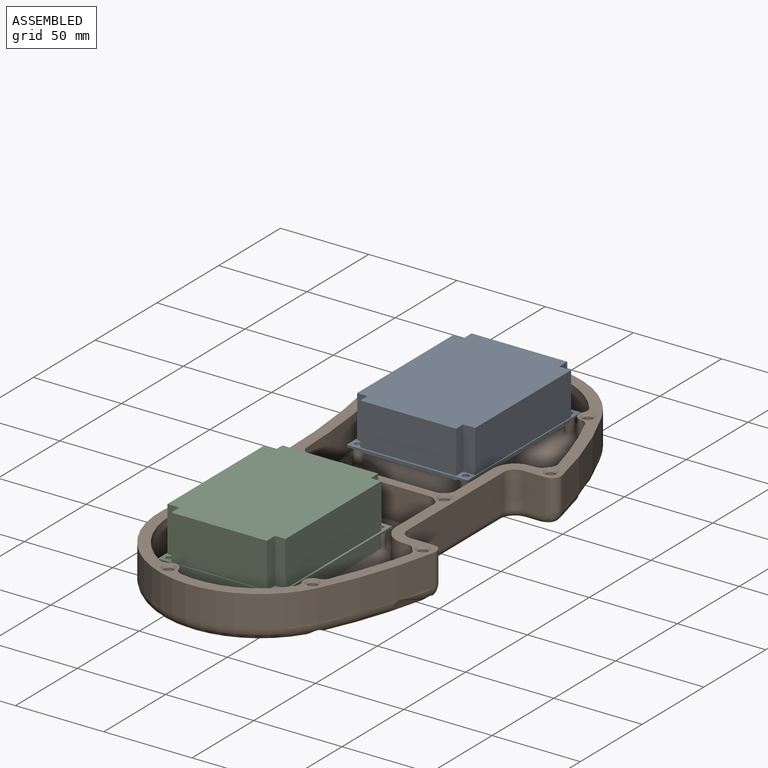
[diagram: assembled view]
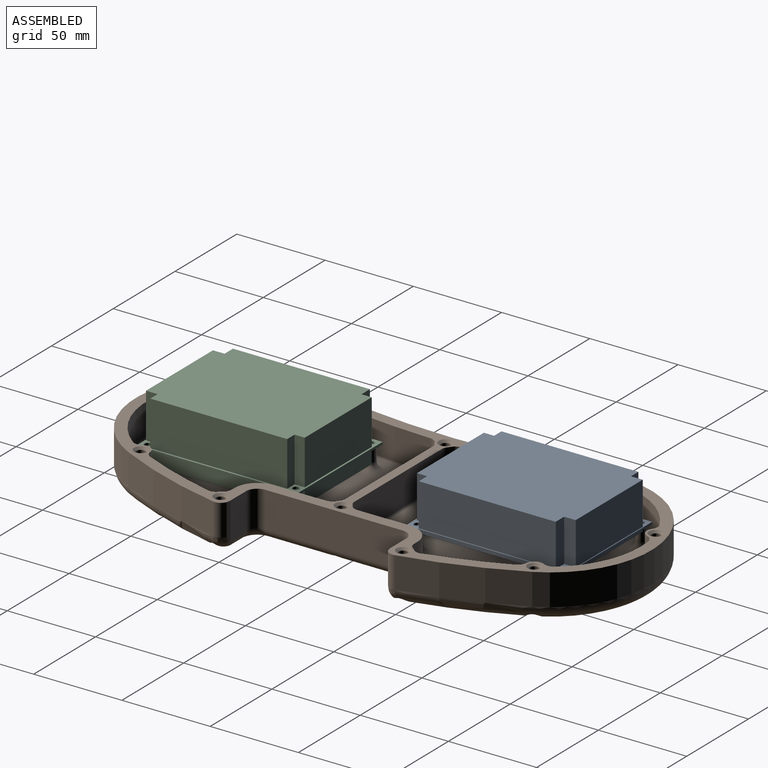
[diagram: assembled view, second angle]
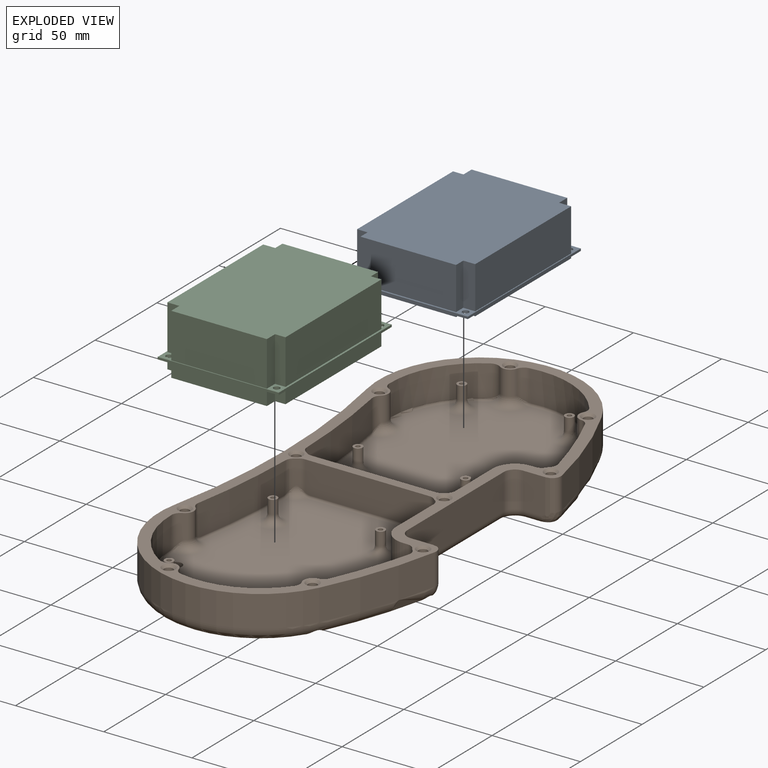
[diagram: exploded view]
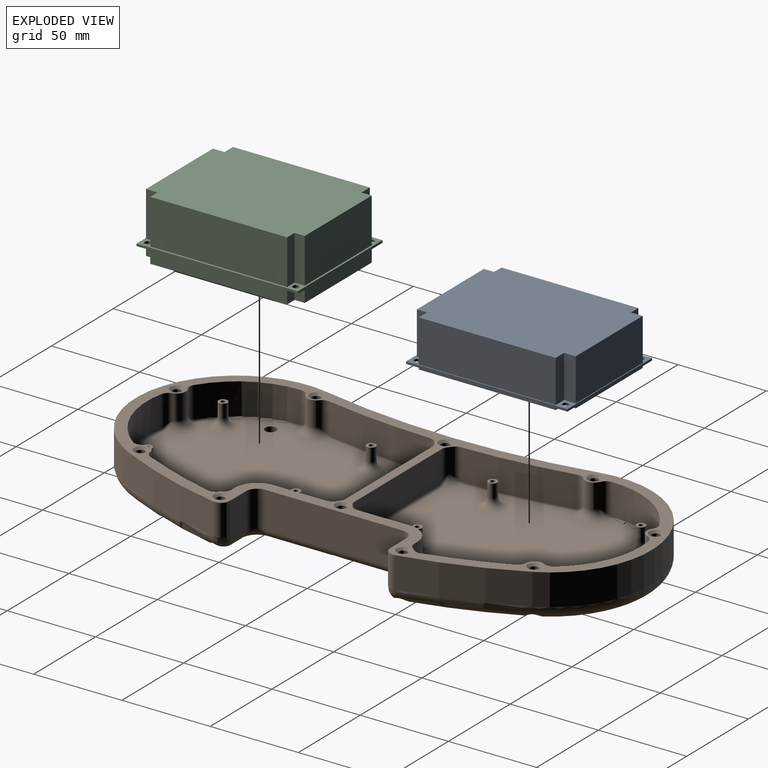
[diagram: exploded view, second angle]
ASSEMBLY  parts=3 mates=4
PART A: 36 faces, bbox 91.4x68.6x26.7 mm
  f0: plane 91.44x68.58mm, normal (0,0,1), area 367.2mm2, adj f2,f3,f4,f5,f6,f7,f8,f9
  f1: plane 91.44x68.58mm, normal (0,0,-1), area 367.2mm2, adj f2,f3,f4,f5,f6,f7,f8,f9
  f2: plane 68.58x1.27mm, normal (-1,0,0), area 87.1mm2, adj f0,f1,f3,f5
  f3: plane 91.44x1.27mm, normal (0,-1,0), area 116.1mm2, adj f0,f1,f2,f4
  f4: plane 68.58x1.27mm, normal (1,0,0), area 87.1mm2, adj f0,f1,f3,f5
  f5: plane 91.44x1.27mm, normal (0,1,0), area 116.1mm2, adj f0,f1,f2,f4
  f6: cylinder r=1.78mm len=3.56mm, axis (0,0,-1), area 14.2mm2, adj f0,f1
  f7: cylinder r=1.78mm len=3.56mm, axis (0,0,-1), area 14.2mm2, adj f0,f1
  f8: cylinder r=1.78mm len=3.56mm, axis (0,0,-1), area 14.2mm2, adj f0,f1
  f9: cylinder r=1.78mm len=3.56mm, axis (0,0,-1), area 14.2mm2, adj f0,f1
  f10: plane 89.98x66.92mm, normal (0,0,-1), area 5864mm2, adj f11,f12,f13,f14,f15,f16,f17,f18
  f11: plane 6.57x1.27mm, normal (0,1,0), area 8.3mm2, adj f1,f10,f12,f22
  f12: plane 54.21x1.27mm, normal (-1,0,0), area 68.8mm2, adj f1,f10,f11,f13
  f13: plane 6.57x1.27mm, normal (0,-1,0), area 8.3mm2, adj f1,f10,f12,f14
  f14: plane 5.93x1.27mm, normal (-1,0,0), area 7.5mm2, adj f1,f10,f13,f15
  f15: plane 77.61x1.27mm, normal (0,-1,0), area 98.6mm2, adj f1,f10,f14,f16
  f16: plane 5.93x1.27mm, normal (1,0,0), area 7.5mm2, adj f1,f10,f15,f17
  f17: plane 5.8x1.27mm, normal (0,-1,0), area 7.4mm2, adj f1,f10,f16,f18
  f18: plane 54.21x1.27mm, normal (1,0,0), area 68.8mm2, adj f1,f10,f17,f19
  f19: plane 5.8x1.27mm, normal (0,1,0), area 7.4mm2, adj f1,f10,f18,f20
  f20: plane 6.78x1.27mm, normal (1,0,0), area 8.6mm2, adj f1,f10,f19,f21
  f21: plane 77.61x1.27mm, normal (0,1,0), area 98.6mm2, adj f1,f10,f20,f22
  f22: plane 6.78x1.27mm, normal (-1,0,0), area 8.6mm2, adj f1,f10,f11,f21
  f23: plane 24.13x6.78mm, normal (-1,0,0), area 163.6mm2, adj f0,f24,f34,f35
  f24: plane 77.61x24.13mm, normal (0,1,0), area 1872.6mm2, adj f0,f23,f25,f35
  f25: plane 24.13x6.78mm, normal (1,0,0), area 163.6mm2, adj f0,f24,f26,f35
  f26: plane 24.13x5.8mm, normal (0,1,0), area 139.9mm2, adj f0,f25,f27,f35
  f27: plane 54.21x24.13mm, normal (1,0,0), area 1308.1mm2, adj f0,f26,f28,f35
  f28: plane 24.13x5.8mm, normal (0,-1,0), area 139.9mm2, adj f0,f27,f29,f35
  f29: plane 24.13x5.93mm, normal (1,0,0), area 143.2mm2, adj f0,f28,f30,f35
  f30: plane 77.61x24.13mm, normal (0,-1,0), area 1872.6mm2, adj f0,f29,f31,f35
  f31: plane 24.13x5.93mm, normal (-1,0,0), area 143.2mm2, adj f0,f30,f32,f35
  f32: plane 24.13x6.57mm, normal (0,-1,0), area 158.6mm2, adj f0,f31,f33,f35
  f33: plane 54.21x24.13mm, normal (-1,0,0), area 1308.1mm2, adj f0,f32,f34,f35
  f34: plane 24.13x6.57mm, normal (0,1,0), area 158.6mm2, adj f0,f23,f33,f35
  f35: plane 89.98x66.92mm, normal (0,0,1), area 5864mm2, adj f23,f24,f25,f26,f27,f28,f29,f30
PART B: 265 faces, bbox 139.1x303.9x27.8 mm
  f0: plane 134.62x112.27mm, normal (0,0,1), area 10563.3mm2, adj f15,f22,f33,f47,f49,f147,f148,f149
  f1: plane 134.62x112.27mm, normal (0,0,1), area 10563.3mm2, adj f13,f21,f38,f48,f50,f151,f152,f153
  f2: cylinder r=2.54mm len=17.78mm, axis (0,0,1), area 283.8mm2, adj f145,f257
  f3: cylinder r=2.54mm len=17.78mm, axis (0,0,1), area 283.8mm2, adj f143,f255
  f4: cylinder r=2.54mm len=17.78mm, axis (0,0,1), area 283.8mm2, adj f141,f264
  f5: cylinder r=2.54mm len=17.78mm, axis (0,0,1), area 283.8mm2, adj f139,f256
  f6: cylinder r=2.54mm len=17.78mm, axis (0,0,1), area 283.8mm2, adj f137,f260
  f7: cylinder r=2.54mm len=17.78mm, axis (0,0,1), area 283.8mm2, adj f135,f262
  f8: cylinder r=2.54mm len=17.78mm, axis (0,0,1), area 283.8mm2, adj f133,f259
  f9: cylinder r=2.54mm len=17.78mm, axis (0,0,1), area 283.8mm2, adj f131,f258
  f10: cylinder r=2.54mm len=17.78mm, axis (0,0,1), area 283.8mm2, adj f129,f261
  f11: cylinder r=2.54mm len=17.78mm, axis (0,0,1), area 283.8mm2, adj f127,f263
  f12: cylinder r=50.8mm len=50.58mm, axis (0,0,1), area 1015.4mm2, adj f13,f36,f187,f189,f232,f234
  f13: torus R=49.53mm, axis (0,0,1), area 109.2mm2, adj f1,f12,f46,f187,f234,f243
  f14: cylinder r=50.8mm len=45.18mm, axis (0,0,1), area 971.3mm2, adj f36,f49,f194,f196,f211,f213
  f15: torus R=49.53mm, axis (0,0,1), area 104.3mm2, adj f0,f32,f44,f192,f222,f249
  f16: torus R=249.56mm, axis (0,0,1), area 541.4mm2, adj f19,f23,f40,f99,f132,f146
  f17: torus R=249.56mm, axis (0,0,1), area 541.4mm2, adj f18,f29,f35,f99,f140,f144
  f18: torus R=49.53mm, axis (0,0,1), area 1327.1mm2, adj f17,f20,f39,f99,f128,f142,f144
  f19: torus R=49.53mm, axis (0,0,1), area 1327.1mm2, adj f16,f20,f41,f99,f132,f134,f138
  f20: torus R=394.97mm, axis (0,0,1), area 1306mm2, adj f18,f19,f42,f99,f134,f136,f142
  f21: cylinder r=3.17mm len=6.35mm, axis (0,0,-1), area 111.5mm2, adj f1,f99
  f22: cylinder r=3.17mm len=6.35mm, axis (0,0,-1), area 111.5mm2, adj f0,f99
  f23: bspline ~9.9x9.37mm, area 58.3mm2, adj f16,f24,f54,f56,f97,f146
  f24: cylinder r=5.08mm len=10.42mm, axis (-1,0,0), area 53mm2, adj f23,f25,f54,f99,f146
  f25: torus R=11.43mm, axis (0,0,1), area 58.2mm2, adj f24,f26,f51,f99
  f26: cylinder r=5.08mm len=78.02mm, axis (0,-1,0), area 399mm2, adj f25,f27,f52,f99,f130
  f27: torus R=11.43mm, axis (0,0,1), area 58.2mm2, adj f26,f28,f53,f99
  f28: cylinder r=5.08mm len=10.42mm, axis (1,0,0), area 53mm2, adj f27,f29,f55,f99,f140
  f29: bspline ~9.9x9.37mm, area 58.3mm2, adj f17,f28,f55,f57,f98,f140
  f30: plane 30.21x17.78mm, normal (-1,0,0), area 537.1mm2, adj f36,f61,f149,f173,f175
  f31: cylinder r=393.7mm len=61.42mm, axis (0,0,1), area 1098.4mm2, adj f36,f50,f201,f203,f204,f206
  f32: plane 4.31x2.43mm, normal (0,0,1), area 2.8mm2, adj f15,f221,f251
  f33: torus R=394.97mm, axis (0,0,1), area 118.1mm2, adj f0,f45,f178,f215
  f34: cylinder r=250.83mm len=43.07mm, axis (0,0,1), area 811.5mm2, adj f36,f38,f155,f157,f236,f238
  f35: cylinder r=257.18mm len=62.84mm, axis (0,0,1), area 1184.8mm2, adj f17,f36,f39,f98
  f36: plane 292.1x130.04mm, normal (0,0,1), area 5027.2mm2, adj f12,f14,f30,f31,f34,f35,f37,f39
  f37: cylinder r=250.83mm len=43.07mm, axis (0,0,1), area 811.5mm2, adj f36,f47,f218,f220,f229,f231
  f38: torus R=249.56mm, axis (0,0,1), area 86.1mm2, adj f1,f34,f157,f236
  f39: cylinder r=57.15mm len=108.35mm, axis (0,0,1), area 2928.9mm2, adj f18,f35,f36,f42
  f40: cylinder r=257.18mm len=62.84mm, axis (0,0,1), area 1184.8mm2, adj f16,f36,f41,f97
  f41: cylinder r=57.15mm len=108.35mm, axis (0,0,1), area 2928.9mm2, adj f19,f36,f40,f42
  f42: cylinder r=387.35mm len=154.94mm, axis (0,0,1), area 2773.5mm2, adj f20,f36,f39,f41
  f43: cylinder r=50.8mm len=43.91mm, axis (0,0,1), area 927.3mm2, adj f36,f48,f183,f185,f208,f210
  f44: cylinder r=50.8mm len=48.14mm, axis (0,0,1), area 971.3mm2, adj f15,f36,f190,f192,f222,f224
  f45: cylinder r=393.7mm len=61.42mm, axis (0,0,1), area 1098.4mm2, adj f33,f36,f176,f178,f215,f217
  f46: plane 4.31x2.43mm, normal (0,0,1), area 2.8mm2, adj f13,f235,f242
  f47: torus R=249.56mm, axis (0,0,1), area 86.1mm2, adj f0,f37,f220,f229
  f48: torus R=49.53mm, axis (0,0,1), area 99.4mm2, adj f1,f43,f185,f208,f245
  f49: torus R=49.53mm, axis (0,0,1), area 104.3mm2, adj f0,f14,f194,f213,f248
  f50: torus R=394.97mm, axis (0,0,1), area 118.1mm2, adj f1,f31,f201,f206
  f51: cylinder r=6.35mm len=20.32mm, axis (0,0,1), area 202.7mm2, adj f25,f36,f52,f54
  f52: plane 78.02x20.32mm, normal (1,0,0), area 1585.4mm2, adj f26,f36,f51,f53
  f53: cylinder r=6.35mm len=20.32mm, axis (0,0,1), area 202.7mm2, adj f27,f36,f52,f55
  f54: plane 20.32x12.7mm, normal (0,-1,0), area 257.2mm2, adj f23,f24,f36,f51,f56
  f55: plane 20.32x12.7mm, normal (0,1,0), area 257.2mm2, adj f28,f29,f36,f53,f57
  f56: plane 22.33x4.71mm, normal (0.18,-0.98,0), area 47.1mm2, adj f23,f36,f54,f97
  f57: plane 22.33x4.71mm, normal (0.18,0.98,0), area 47.1mm2, adj f29,f36,f55,f98
  f58: plane 17.78x2.65mm, normal (0,-1,0), area 47mm2, adj f36,f59,f152,f159,f161
  f59: cylinder r=12.7mm len=17.78mm, axis (0,0,1), area 354.7mm2, adj f36,f58,f60,f154
  f60: plane 30.21x17.78mm, normal (-1,0,0), area 537.1mm2, adj f36,f59,f153,f162,f164
  f61: cylinder r=12.7mm len=17.78mm, axis (0,0,1), area 354.7mm2, adj f30,f36,f62,f148
  f62: plane 17.78x2.65mm, normal (0,1,0), area 47mm2, adj f36,f61,f147,f225,f227
  f63: plane 70.5x17.78mm, normal (0,1,0), area 1251.8mm2, adj f36,f150,f169,f171,f180,f182
  f64: plane 70.5x17.78mm, normal (0,-1,0), area 1251.8mm2, adj f36,f151,f166,f168,f197,f199
  f65: cylinder r=1.27mm len=12.7mm, axis (0,0,-1), area 101.3mm2, adj f67,f68
  f66: cylinder r=2.54mm len=7.62mm, axis (0,0,-1), area 121.6mm2, adj f67,f254
  f67: plane 5.08x5.08mm, normal (0,0,1), area 15.2mm2, adj f65,f66
  f68: plane 2.54x2.54mm, normal (0,0,1), area 5.1mm2, adj f65
  f69: cylinder r=1.27mm len=12.7mm, axis (0,0,-1), area 101.3mm2, adj f71,f72
  f70: cylinder r=2.54mm len=7.62mm, axis (0,0,-1), area 121.6mm2, adj f71,f253
  f71: plane 5.08x5.08mm, normal (0,0,1), area 15.2mm2, adj f69,f70
  f72: plane 2.54x2.54mm, normal (0,0,1), area 5.1mm2, adj f69
  f73: cylinder r=1.27mm len=12.7mm, axis (0,0,-1), area 101.3mm2, adj f75,f76
  f74: cylinder r=2.54mm len=7.62mm, axis (0,0,-1), area 121.6mm2, adj f75,f249,f250,f251,f252
  f75: plane 5.08x5.08mm, normal (0,0,1), area 15.2mm2, adj f73,f74
  f76: plane 2.54x2.54mm, normal (0,0,1), area 5.1mm2, adj f73
  f77: cylinder r=1.27mm len=12.7mm, axis (0,0,-1), area 101.3mm2, adj f79,f80
  f78: cylinder r=2.54mm len=7.62mm, axis (0,0,-1), area 121.6mm2, adj f79,f247,f248
  f79: plane 5.08x5.08mm, normal (0,0,1), area 15.2mm2, adj f77,f78
  f80: plane 2.54x2.54mm, normal (0,0,1), area 5.1mm2, adj f77
  f81: cylinder r=2.54mm len=7.62mm, axis (0,0,-1), area 121.6mm2, adj f83,f246
  f82: cylinder r=1.27mm len=12.7mm, axis (0,0,-1), area 101.3mm2, adj f83,f84
  f83: plane 5.08x5.08mm, normal (0,0,1), area 15.2mm2, adj f81,f82
  f84: plane 2.54x2.54mm, normal (0,0,1), area 5.1mm2, adj f82
  f85: cylinder r=2.54mm len=7.62mm, axis (0,0,-1), area 121.6mm2, adj f87,f244,f245
  f86: cylinder r=1.27mm len=12.7mm, axis (0,0,-1), area 101.3mm2, adj f87,f88
  f87: plane 5.08x5.08mm, normal (0,0,1), area 15.2mm2, adj f85,f86
  f88: plane 2.54x2.54mm, normal (0,0,1), area 5.1mm2, adj f86
  f89: cylinder r=2.54mm len=7.62mm, axis (0,0,-1), area 121.6mm2, adj f91,f240,f241,f242,f243
  f90: cylinder r=1.27mm len=12.7mm, axis (0,0,-1), area 101.3mm2, adj f91,f92
  f91: plane 5.08x5.08mm, normal (0,0,1), area 15.2mm2, adj f89,f90
  f92: plane 2.54x2.54mm, normal (0,0,1), area 5.1mm2, adj f90
  f93: cylinder r=2.54mm len=7.62mm, axis (0,0,-1), area 121.6mm2, adj f95,f239
  f94: cylinder r=1.27mm len=12.7mm, axis (0,0,-1), area 101.3mm2, adj f95,f96
  f95: plane 5.08x5.08mm, normal (0,0,1), area 15.2mm2, adj f93,f94
  f96: plane 2.54x2.54mm, normal (0,0,1), area 5.1mm2, adj f94
  f97: cylinder r=5.08mm len=17.78mm, axis (0,0,1), area 122.4mm2, adj f23,f36,f40,f56
  f98: cylinder r=5.08mm len=17.78mm, axis (0,0,1), area 122.4mm2, adj f29,f35,f36,f57
  f99: plane 283.5x120.19mm, normal (0,0,-1), area 26318.3mm2, adj f16,f17,f18,f19,f20,f21,f22,f24
  f100: cylinder r=1.57mm len=3.14mm, axis (0,0,-1), area 5.5mm2, adj f99,f101,f106,f109
  f101: plane 0.76x0.24mm, normal (-0.67,0.74,0), area 0.3mm2, adj f99,f100,f102,f109
  f102: cylinder r=1.24mm len=2.48mm, axis (0,0,-1), area 4.4mm2, adj f99,f101,f106,f109
  f103: plane 3.14x0.76mm, normal (0,-1,0), area 2.4mm2, adj f99,f104,f107,f108
  f104: plane 0.8x0.76mm, normal (1,0,0), area 0.6mm2, adj f99,f103,f105,f108
  f105: cylinder r=1.57mm len=3.14mm, axis (0,0,-1), area 3.8mm2, adj f99,f104,f107,f108
  f106: plane 0.76x0.25mm, normal (0.66,0.75,0), area 0.3mm2, adj f99,f100,f102,f109
  f107: plane 0.8x0.76mm, normal (-1,0,0), area 0.6mm2, adj f99,f103,f105,f108
  f108: plane 3.14x2.37mm, normal (0,0,-1), area 2.8mm2, adj f103,f104,f105,f107,f110,f111,f112,f113
  f109: plane 3.14x2.63mm, normal (0,0,-1), area 2.1mm2, adj f100,f101,f102,f106
  f110: cylinder r=1.24mm len=2.48mm, axis (0,0,-1), area 3mm2, adj f108,f111,f113,f114
  f111: plane 0.76x0.47mm, normal (-1,0,0), area 0.4mm2, adj f108,f110,f112,f114
  f112: plane 2.48x0.76mm, normal (0,1,0), area 1.9mm2, adj f108,f111,f113,f114
  f113: plane 0.76x0.47mm, normal (1,0,0), area 0.4mm2, adj f108,f110,f112,f114
  f114: plane 2.48x1.71mm, normal (0,0,-1), area 3.6mm2, adj f110,f111,f112,f113
  f115: cylinder r=5.08mm len=13.97mm, axis (0,0,1), area 21.2mm2, adj f36,f155,f158,f161
  f116: cylinder r=5.08mm len=13.97mm, axis (0,0,1), area 141.1mm2, adj f36,f232,f235,f238
  f117: cylinder r=5.08mm len=13.97mm, axis (0,0,1), area 21.2mm2, adj f36,f225,f228,f231
  f118: cylinder r=5.08mm len=13.97mm, axis (0,0,1), area 141.1mm2, adj f36,f218,f221,f224
  f119: cylinder r=5.08mm len=13.97mm, axis (0,0,1), area 143.1mm2, adj f36,f211,f214,f217
  f120: cylinder r=5.08mm len=13.97mm, axis (0,0,1), area 143.1mm2, adj f36,f204,f207,f210
  f121: cylinder r=5.08mm len=13.97mm, axis (0,0,1), area 14.1mm2, adj f36,f162,f165,f168
  f122: cylinder r=5.08mm len=13.97mm, axis (0,0,1), area 14.1mm2, adj f36,f169,f172,f175
  f123: cylinder r=5.08mm len=13.97mm, axis (0,0,1), area 14.9mm2, adj f36,f197,f200,f203
  f124: cylinder r=5.08mm len=13.97mm, axis (0,0,1), area 14.9mm2, adj f36,f176,f179,f182
  f125: cylinder r=5.08mm len=13.97mm, axis (0,0,1), area 136mm2, adj f36,f190,f193,f196
  f126: cylinder r=5.08mm len=13.97mm, axis (0,0,1), area 136mm2, adj f36,f183,f186,f189
  f127: plane 9.53x9.53mm, normal (0,0,-1), area 51mm2, adj f11,f128
  f128: cylinder r=4.76mm len=9.53mm, axis (0,0,-1), area 152.8mm2, adj f18,f99,f127
  f129: plane 9.53x9.53mm, normal (0,0,-1), area 51mm2, adj f10,f130
  f130: cylinder r=4.76mm len=9.53mm, axis (0,0,-1), area 167.2mm2, adj f26,f99,f129
  f131: plane 9.53x9.53mm, normal (0,0,-1), area 51mm2, adj f9,f132
  f132: cylinder r=4.76mm len=9.53mm, axis (0,0,-1), area 155.1mm2, adj f16,f19,f99,f131
  f133: plane 9.53x9.53mm, normal (0,0,-1), area 51mm2, adj f8,f134
  f134: cylinder r=4.76mm len=9.53mm, axis (0,0,-1), area 154.5mm2, adj f19,f20,f99,f133
  f135: plane 9.53x9.53mm, normal (0,0,-1), area 51mm2, adj f7,f136
  f136: cylinder r=4.76mm len=9.53mm, axis (0,0,-1), area 155.4mm2, adj f20,f99,f135
  f137: plane 9.53x9.53mm, normal (0,0,-1), area 51mm2, adj f6,f138
  f138: cylinder r=4.76mm len=9.53mm, axis (0,0,-1), area 152.8mm2, adj f19,f99,f137
  f139: plane 9.53x9.53mm, normal (0,0,-1), area 51mm2, adj f5,f140
  f140: cylinder r=4.76mm len=9.53mm, axis (0,0,-1), area 150.3mm2, adj f17,f28,f29,f99,f139
  f141: plane 9.53x9.53mm, normal (0,0,-1), area 51mm2, adj f4,f142
  f142: cylinder r=4.76mm len=9.53mm, axis (0,0,-1), area 154.5mm2, adj f18,f20,f99,f141
  f143: plane 9.53x9.53mm, normal (0,0,-1), area 51mm2, adj f3,f144
  f144: cylinder r=4.76mm len=9.53mm, axis (0,0,-1), area 155.1mm2, adj f17,f18,f99,f143
  f145: plane 9.53x9.53mm, normal (0,0,-1), area 51mm2, adj f2,f146
  f146: cylinder r=4.76mm len=9.53mm, axis (0,0,-1), area 150.3mm2, adj f16,f23,f24,f99,f145
  f147: cylinder r=1.27mm len=1.37mm, axis (-1,0,0), area 2.7mm2, adj f0,f62,f148,f227
  f148: torus R=13.97mm, axis (0,0,1), area 41.2mm2, adj f0,f61,f147,f149
  f149: cylinder r=1.27mm len=28.93mm, axis (0,-1,0), area 57.7mm2, adj f0,f30,f148,f173
  f150: cylinder r=1.27mm len=65.1mm, axis (-1,0,0), area 129.9mm2, adj f0,f63,f171,f180
  f151: cylinder r=1.27mm len=65.1mm, axis (1,0,0), area 129.9mm2, adj f1,f64,f166,f199
  f152: cylinder r=1.27mm len=1.37mm, axis (1,0,0), area 2.7mm2, adj f1,f58,f154,f159
  f153: cylinder r=1.27mm len=28.93mm, axis (0,-1,0), area 57.7mm2, adj f1,f60,f154,f164
  f154: torus R=13.97mm, axis (0,0,1), area 41.2mm2, adj f1,f59,f152,f153
  f155: cylinder r=5.08mm len=17.59mm, axis (0,0,-1), area 85.4mm2, adj f34,f36,f115,f156
  f156: bspline ~5.72x5.03mm, area 5.1mm2, adj f155,f157,f158
  f157: bspline ~3.32x2.01mm, area 2.9mm2, adj f34,f38,f156,f158
  f158: torus R=10.16mm, axis (0,0,1), area 45.2mm2, adj f1,f115,f156,f157,f159,f160
  f159: bspline ~3.13x1.57mm, area 3.1mm2, adj f58,f152,f158,f160
  f160: bspline ~4.79x4.4mm, area 5mm2, adj f158,f159,f161
  f161: cylinder r=5.08mm len=17.56mm, axis (0,0,1), area 83.9mm2, adj f36,f58,f115,f160
  f162: cylinder r=5.08mm len=17.56mm, axis (0,0,1), area 83.9mm2, adj f36,f60,f121,f163
  f163: bspline ~4.79x4.4mm, area 4.9mm2, adj f162,f164,f165
  f164: bspline ~3.13x1.57mm, area 3.1mm2, adj f60,f153,f163,f165
  f165: torus R=10.16mm, axis (0,0,1), area 41.9mm2, adj f1,f121,f163,f164,f166,f167
  f166: bspline ~4.98x2.39mm, area 6.1mm2, adj f64,f151,f165,f167
  f167: bspline ~4.43x4.18mm, area 2.7mm2, adj f165,f166,f168
  f168: cylinder r=5.08mm len=16.9mm, axis (0,0,1), area 56.7mm2, adj f36,f64,f121,f167
  f169: cylinder r=5.08mm len=16.9mm, axis (0,0,1), area 56.7mm2, adj f36,f63,f122,f170
  f170: bspline ~4.43x4.18mm, area 2.7mm2, adj f169,f171,f172
  f171: bspline ~4.98x2.39mm, area 6.1mm2, adj f63,f150,f170,f172
  f172: torus R=10.16mm, axis (0,0,1), area 41.9mm2, adj f0,f122,f170,f171,f173,f174
  f173: bspline ~3.13x1.57mm, area 3.1mm2, adj f30,f149,f172,f174
  f174: bspline ~4.79x4.4mm, area 4.9mm2, adj f172,f173,f175
  f175: cylinder r=5.08mm len=17.56mm, axis (0,0,1), area 83.9mm2, adj f30,f36,f122,f174
  f176: cylinder r=5.08mm len=17.55mm, axis (0,0,-1), area 82.9mm2, adj f36,f45,f124,f177
  f177: bspline ~4.77x4.31mm, area 4.9mm2, adj f176,f178,f179
  f178: bspline ~3.9x1.87mm, area 3.2mm2, adj f33,f45,f177,f179
  f179: torus R=10.16mm, axis (0,0,1), area 42.5mm2, adj f0,f124,f177,f178,f180,f181
  f180: bspline ~4.98x2.39mm, area 6.1mm2, adj f63,f150,f179,f181
  f181: bspline ~4.43x4.18mm, area 2.7mm2, adj f179,f180,f182
  f182: cylinder r=5.08mm len=16.9mm, axis (0,0,1), area 56.7mm2, adj f36,f63,f124,f181
  f183: cylinder r=5.08mm len=17.67mm, axis (0,0,-1), area 91.7mm2, adj f36,f43,f126,f184
  f184: bspline ~5.49x4.93mm, area 5.7mm2, adj f183,f185,f186
  f185: bspline ~3.06x2.61mm, area 2.3mm2, adj f43,f48,f184,f186
  f186: torus R=10.16mm, axis (0,0,1), area 133.4mm2, adj f1,f126,f184,f185,f187,f188
  f187: bspline ~3.02x1.75mm, area 2.3mm2, adj f12,f13,f186,f188
  f188: bspline ~5.08x4.78mm, area 5.7mm2, adj f186,f187,f189
  f189: cylinder r=5.08mm len=17.67mm, axis (0,0,1), area 91.7mm2, adj f12,f36,f126,f188
  f190: cylinder r=5.08mm len=17.67mm, axis (0,0,-1), area 91.7mm2, adj f36,f44,f125,f191
  f191: bspline ~5.08x4.96mm, area 5.7mm2, adj f190,f192,f193
  f192: bspline ~2.98x1.62mm, area 2.3mm2, adj f15,f44,f191,f193
  f193: torus R=10.16mm, axis (0,0,1), area 133.4mm2, adj f0,f125,f191,f192,f194,f195
  f194: bspline ~3.08x2.52mm, area 2.3mm2, adj f14,f49,f193,f195
  f195: bspline ~6.17x5.08mm, area 5.7mm2, adj f193,f194,f196
  f196: cylinder r=5.08mm len=17.67mm, axis (0,0,1), area 91.7mm2, adj f14,f36,f125,f195
  f197: cylinder r=5.08mm len=16.9mm, axis (0,0,1), area 56.7mm2, adj f36,f64,f123,f198
  f198: bspline ~4.43x4.18mm, area 2.7mm2, adj f197,f199,f200
  f199: bspline ~4.98x2.39mm, area 6.1mm2, adj f64,f151,f198,f200
  f200: torus R=10.16mm, axis (0,0,1), area 42.5mm2, adj f1,f123,f198,f199,f201,f202
  f201: bspline ~3.9x1.87mm, area 3.2mm2, adj f31,f50,f200,f202
  f202: bspline ~4.77x4.31mm, area 4.9mm2, adj f200,f201,f203
  f203: cylinder r=5.08mm len=17.55mm, axis (0,0,1), area 82.9mm2, adj f31,f36,f123,f202
  f204: cylinder r=5.08mm len=17.55mm, axis (0,0,-1), area 82.9mm2, adj f31,f36,f120,f205
  f205: bspline ~5.52x5mm, area 4.9mm2, adj f204,f206,f207
  f206: bspline ~4.04x1.97mm, area 3.2mm2, adj f31,f50,f205,f207
  f207: torus R=10.16mm, axis (0,0,1), area 139.7mm2, adj f1,f120,f205,f206,f208,f209
  f208: bspline ~2.86x1.49mm, area 2.3mm2, adj f43,f48,f207,f209
  f209: bspline ~5.4x5.08mm, area 5.7mm2, adj f207,f208,f210
  f210: cylinder r=5.08mm len=17.67mm, axis (0,0,1), area 91.7mm2, adj f36,f43,f120,f209
  f211: cylinder r=5.08mm len=17.67mm, axis (0,0,-1), area 91.7mm2, adj f14,f36,f119,f212
  f212: bspline ~5.4x5.08mm, area 5.7mm2, adj f211,f213,f214
  f213: bspline ~2.86x1.49mm, area 2.3mm2, adj f14,f49,f212,f214
  f214: torus R=10.16mm, axis (0,0,1), area 139.7mm2, adj f0,f119,f212,f213,f215,f216
  f215: bspline ~4.04x1.97mm, area 3.2mm2, adj f33,f45,f214,f216
  f216: bspline ~5.52x5mm, area 4.9mm2, adj f214,f215,f217
  f217: cylinder r=5.08mm len=17.55mm, axis (0,0,1), area 82.9mm2, adj f36,f45,f119,f216
  f218: cylinder r=5.08mm len=17.59mm, axis (0,0,-1), area 85.4mm2, adj f36,f37,f118,f219
  f219: bspline ~5.03x4.5mm, area 5.1mm2, adj f218,f220,f221
  f220: bspline ~3.36x2.38mm, area 2.9mm2, adj f37,f47,f219,f221
  f221: torus R=10.16mm, axis (0,0,1), area 137.9mm2, adj f0,f32,f118,f219,f220,f222,f223,f252
  f222: bspline ~3.01x2.73mm, area 2.3mm2, adj f15,f44,f221,f223
  f223: bspline ~5.64x4.98mm, area 5.6mm2, adj f221,f222,f224
  f224: cylinder r=5.08mm len=17.67mm, axis (0,0,1), area 91.7mm2, adj f36,f44,f118,f223
  f225: cylinder r=5.08mm len=17.56mm, axis (0,0,1), area 83.9mm2, adj f36,f62,f117,f226
  f226: bspline ~4.79x4.4mm, area 5mm2, adj f225,f227,f228
  f227: bspline ~3.13x1.57mm, area 3.1mm2, adj f62,f147,f226,f228
  f228: torus R=10.16mm, axis (0,0,1), area 45.2mm2, adj f0,f117,f226,f227,f229,f230
  f229: bspline ~3.32x2.01mm, area 2.9mm2, adj f37,f47,f228,f230
  f230: bspline ~5.72x5.03mm, area 5.1mm2, adj f228,f229,f231
  f231: cylinder r=5.08mm len=17.59mm, axis (0,0,1), area 85.4mm2, adj f36,f37,f117,f230
  f232: cylinder r=5.08mm len=17.67mm, axis (0,0,-1), area 91.7mm2, adj f12,f36,f116,f233
  f233: bspline ~5.64x4.98mm, area 5.6mm2, adj f232,f234,f235
  f234: bspline ~3.01x2.73mm, area 2.3mm2, adj f12,f13,f233,f235
  f235: torus R=10.16mm, axis (0,0,1), area 137.9mm2, adj f1,f46,f116,f233,f234,f236,f237,f240
  f236: bspline ~3.36x2.38mm, area 2.9mm2, adj f34,f38,f235,f237
  f237: bspline ~4.82x4.22mm, area 5.1mm2, adj f235,f236,f238
  f238: cylinder r=5.08mm len=17.59mm, axis (0,0,1), area 85.4mm2, adj f34,f36,f116,f237
  f239: torus R=7.62mm, axis (0,0,1), area 219.9mm2, adj f1,f93
  f240: bspline ~5.79x5.17mm, area 21.9mm2, adj f89,f235,f241,f242
  f241: torus R=7.62mm, axis (0,0,1), area 156.6mm2, adj f1,f89,f240,f243
  f242: torus R=7.62mm, axis (0,0,1), area 20.6mm2, adj f46,f89,f240,f243
  f243: bspline ~6.26x6.13mm, area 17.3mm2, adj f13,f89,f241,f242
  f244: torus R=7.62mm, axis (0,0,1), area 183.4mm2, adj f1,f85,f245
  f245: bspline ~6.7x6.68mm, area 32mm2, adj f48,f85,f244
  f246: torus R=7.62mm, axis (0,0,1), area 219.9mm2, adj f1,f81
  f247: torus R=7.62mm, axis (0,0,1), area 183.4mm2, adj f0,f78,f248
  f248: bspline ~7.52x7.35mm, area 32mm2, adj f49,f78,f247
  f249: bspline ~6.26x6.13mm, area 17.3mm2, adj f15,f74,f250,f251
  f250: torus R=7.62mm, axis (0,0,1), area 156.6mm2, adj f0,f74,f249,f252
  f251: torus R=7.62mm, axis (0,0,1), area 20.6mm2, adj f32,f74,f249,f252
  f252: bspline ~5.79x5.17mm, area 21.9mm2, adj f74,f221,f250,f251
  f253: torus R=7.62mm, axis (0,0,1), area 219.9mm2, adj f0,f70
  f254: torus R=7.62mm, axis (0,0,1), area 219.9mm2, adj f0,f66
  f255: cone r=2.54mm half-angle=45deg, axis (0,0,1), area 35.8mm2, adj f3,f36
  f256: cone r=2.54mm half-angle=45deg, axis (0,0,1), area 35.8mm2, adj f5,f36
  f257: cone r=2.54mm half-angle=45deg, axis (0,0,1), area 35.8mm2, adj f2,f36
  f258: cone r=2.54mm half-angle=45deg, axis (0,0,1), area 35.8mm2, adj f9,f36
  f259: cone r=2.54mm half-angle=45deg, axis (0,0,1), area 35.8mm2, adj f8,f36
  f260: cone r=2.54mm half-angle=45deg, axis (0,0,1), area 35.8mm2, adj f6,f36
  f261: cone r=2.54mm half-angle=45deg, axis (0,0,1), area 35.8mm2, adj f10,f36
  f262: cone r=2.54mm half-angle=45deg, axis (0,0,1), area 35.8mm2, adj f7,f36
  f263: cone r=2.54mm half-angle=45deg, axis (0,0,1), area 35.8mm2, adj f11,f36
  f264: cone r=2.54mm half-angle=45deg, axis (0,0,1), area 35.8mm2, adj f4,f36
PART C: 36 faces, bbox 91.4x68.6x34.3 mm
  f0: plane 91.44x68.58mm, normal (0,0,1), area 367.2mm2, adj f2,f3,f4,f5,f6,f7,f8,f9
  f1: plane 91.44x68.58mm, normal (0,0,-1), area 367.2mm2, adj f2,f3,f4,f5,f6,f7,f8,f9
  f2: plane 68.58x1.27mm, normal (-1,0,0), area 87.1mm2, adj f0,f1,f3,f5
  f3: plane 91.44x1.27mm, normal (0,-1,0), area 116.1mm2, adj f0,f1,f2,f4
  f4: plane 68.58x1.27mm, normal (1,0,0), area 87.1mm2, adj f0,f1,f3,f5
  f5: plane 91.44x1.27mm, normal (0,1,0), area 116.1mm2, adj f0,f1,f2,f4
  f6: cylinder r=1.78mm len=3.56mm, axis (0,0,-1), area 14.2mm2, adj f0,f1
  f7: cylinder r=1.78mm len=3.56mm, axis (0,0,-1), area 14.2mm2, adj f0,f1
  f8: cylinder r=1.78mm len=3.56mm, axis (0,0,-1), area 14.2mm2, adj f0,f1
  f9: cylinder r=1.78mm len=3.56mm, axis (0,0,-1), area 14.2mm2, adj f0,f1
  f10: plane 89.98x66.92mm, normal (0,0,-1), area 5864mm2, adj f11,f12,f13,f14,f15,f16,f17,f18
  f11: plane 7.62x6.57mm, normal (0,1,0), area 50.1mm2, adj f1,f10,f12,f22
  f12: plane 54.21x7.62mm, normal (-1,0,0), area 413.1mm2, adj f1,f10,f11,f13
  f13: plane 7.62x6.57mm, normal (0,-1,0), area 50.1mm2, adj f1,f10,f12,f14
  f14: plane 7.62x5.93mm, normal (-1,0,0), area 45.2mm2, adj f1,f10,f13,f15
  f15: plane 77.61x7.62mm, normal (0,-1,0), area 591.4mm2, adj f1,f10,f14,f16
  f16: plane 7.62x5.93mm, normal (1,0,0), area 45.2mm2, adj f1,f10,f15,f17
  f17: plane 7.62x5.8mm, normal (0,-1,0), area 44.2mm2, adj f1,f10,f16,f18
  f18: plane 54.21x7.62mm, normal (1,0,0), area 413.1mm2, adj f1,f10,f17,f19
  f19: plane 7.62x5.8mm, normal (0,1,0), area 44.2mm2, adj f1,f10,f18,f20
  f20: plane 7.62x6.78mm, normal (1,0,0), area 51.7mm2, adj f1,f10,f19,f21
  f21: plane 77.61x7.62mm, normal (0,1,0), area 591.4mm2, adj f1,f10,f20,f22
  f22: plane 7.62x6.78mm, normal (-1,0,0), area 51.7mm2, adj f1,f10,f11,f21
  f23: plane 25.4x6.78mm, normal (-1,0,0), area 172.2mm2, adj f0,f24,f34,f35
  f24: plane 77.61x25.4mm, normal (0,1,0), area 1971.2mm2, adj f0,f23,f25,f35
  f25: plane 25.4x6.78mm, normal (1,0,0), area 172.2mm2, adj f0,f24,f26,f35
  f26: plane 25.4x5.8mm, normal (0,1,0), area 147.3mm2, adj f0,f25,f27,f35
  f27: plane 54.21x25.4mm, normal (1,0,0), area 1376.9mm2, adj f0,f26,f28,f35
  f28: plane 25.4x5.8mm, normal (0,-1,0), area 147.3mm2, adj f0,f27,f29,f35
  f29: plane 25.4x5.93mm, normal (1,0,0), area 150.7mm2, adj f0,f28,f30,f35
  f30: plane 77.61x25.4mm, normal (0,-1,0), area 1971.2mm2, adj f0,f29,f31,f35
  f31: plane 25.4x5.93mm, normal (-1,0,0), area 150.7mm2, adj f0,f30,f32,f35
  f32: plane 25.4x6.57mm, normal (0,-1,0), area 167mm2, adj f0,f31,f33,f35
  f33: plane 54.21x25.4mm, normal (-1,0,0), area 1376.9mm2, adj f0,f32,f34,f35
  f34: plane 25.4x6.57mm, normal (0,1,0), area 167mm2, adj f0,f23,f33,f35
  f35: plane 89.98x66.92mm, normal (0,0,1), area 5864mm2, adj f23,f24,f25,f26,f27,f28,f29,f30
PLACE A rot(axis=(0,0,-1),90deg) t=(-203.76,16.48,130.6)mm
PLACE B t=(31.04,-122.26,136.95)mm
PLACE C rot(axis=(0,0,1),90deg) t=(-142.76,-220.36,130.6)mm
MATE cylindrical C.f8 <-> B.f93  axis (0,0,-1) through (-142.76,-136.36,130.6)mm
MATE planar B.f69 <-> A.f1  axis (0,0,1) through (-142.76,-67.52,130.6)mm
MATE cylindrical B.f73 <-> A.f6  axis (0,0,1) through (-142.76,16.48,130.6)mm
MATE planar C.f1 <-> B.f93  axis (0,0,-1) through (-139.04,-132.64,130.6)mm
